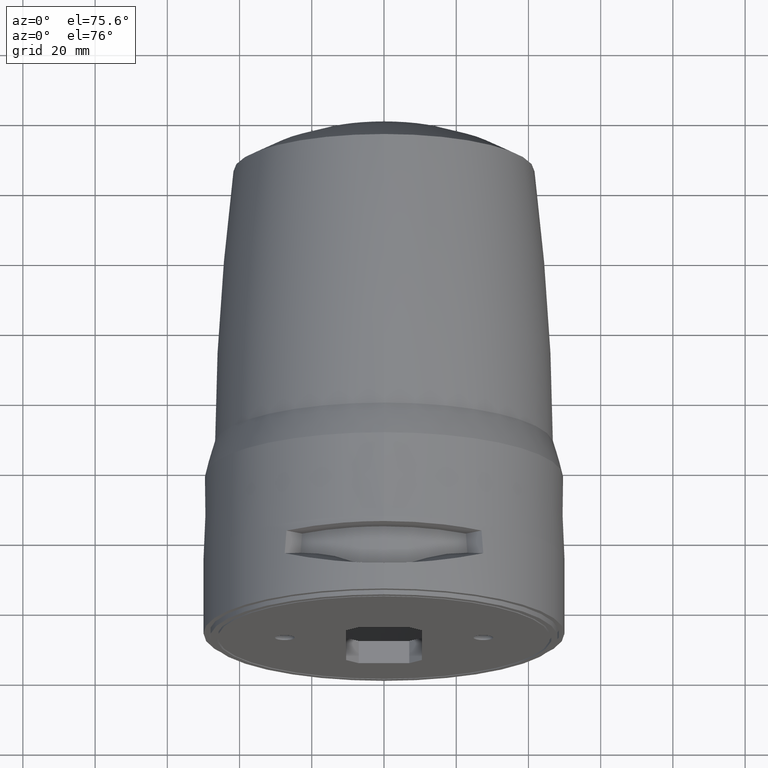
[diagram: clean part render]
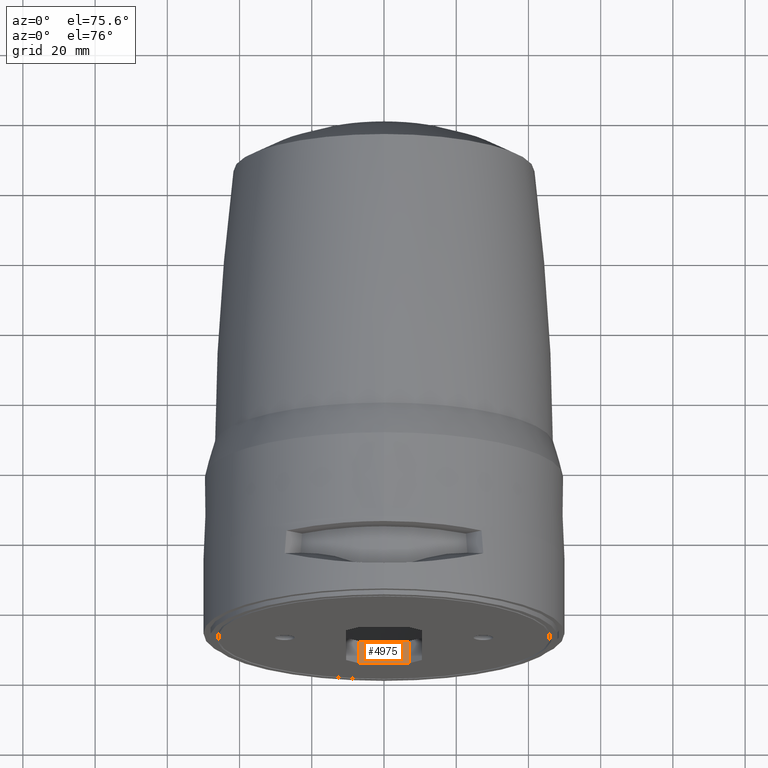
[diagram: same view with one face highlighted and labeled with its STEP entity id]
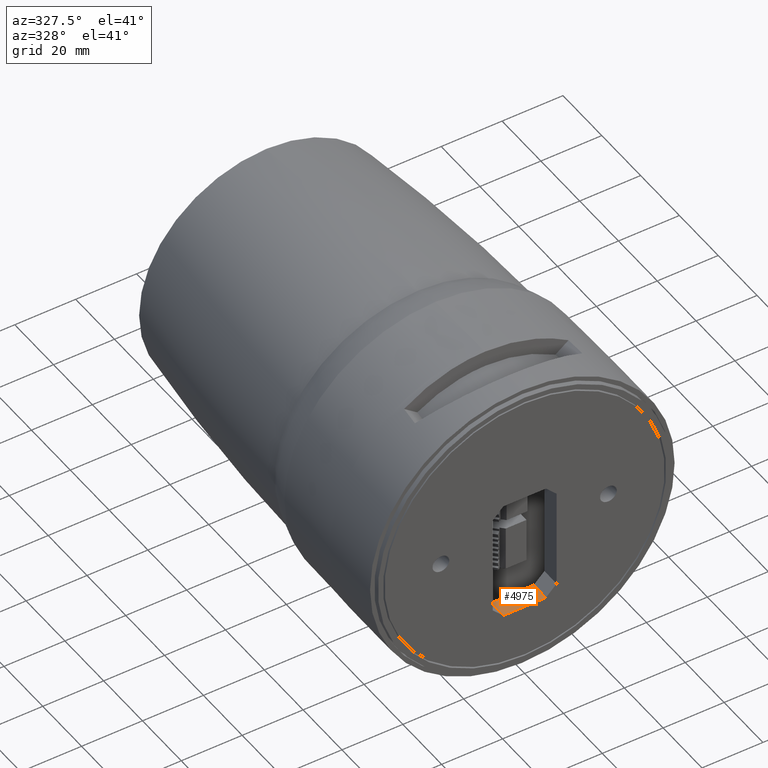
[diagram: same view with one face highlighted and labeled with its STEP entity id]
A machine part, auxiliary view. The second image highlights one B-rep face of the part: STEP entity #4975.
A second angle (auxiliary view) of the same face is appended — the face is thin or edge-on in the first view.
In plain terms, the highlighted planar face has unit normal (0, 0, -1).
Its self-contained STEP definition (entity closure, byte-faithful):
#217 = ORIENTED_EDGE ( 'NONE', *, *, #4767, .F. ) ;
#462 = PLANE ( 'NONE',  #12888 ) ;
#507 = DIRECTION ( 'NONE',  ( -1.000000000000000000, 0.000000000000000000, 0.000000000000000000 ) ) ;
#1108 = DIRECTION ( 'NONE',  ( 0.000000000000000000, 1.000000000000000000, 0.000000000000000000 ) ) ;
#1489 = LINE ( 'NONE', #9903, #3769 ) ;
#3032 = ORIENTED_EDGE ( 'NONE', *, *, #13120, .T. ) ;
#3565 = CARTESIAN_POINT ( 'NONE',  ( -7.000000000000000000, 6.299999999999999822, -28.50000000000000000 ) ) ;
#3680 = LINE ( 'NONE', #9048, #9845 ) ;
#3769 = VECTOR ( 'NONE', #8871, 1000.000000000000000 ) ;
#4767 = EDGE_CURVE ( 'NONE', #10610, #10770, #7625, .T. ) ;
#4975 = ADVANCED_FACE ( 'NONE', ( #10045 ), #462, .F. ) ;
#5488 = DIRECTION ( 'NONE',  ( -1.000000000000000000, 0.000000000000000000, 0.000000000000000000 ) ) ;
#5489 = VERTEX_POINT ( 'NONE', #6910 ) ;
#5630 = DIRECTION ( 'NONE',  ( 0.000000000000000000, 0.000000000000000000, -1.000000000000000000 ) ) ;
#5898 = VECTOR ( 'NONE', #1108, 1000.000000000000000 ) ;
#6260 = CARTESIAN_POINT ( 'NONE',  ( 7.000000000000000000, 0.000000000000000000, -28.50000000000000000 ) ) ;
#6495 = VECTOR ( 'NONE', #5488, 1000.000000000000000 ) ;
#6727 = DIRECTION ( 'NONE',  ( 0.000000000000000000, -1.000000000000000000, 0.000000000000000000 ) ) ;
#6774 = VERTEX_POINT ( 'NONE', #3565 ) ;
#6910 = CARTESIAN_POINT ( 'NONE',  ( 7.000000000000000000, 6.299999999999999822, -28.50000000000000000 ) ) ;
#7443 = CARTESIAN_POINT ( 'NONE',  ( 7.000000000000000000, 6.299999999999999822, -28.50000000000000000 ) ) ;
#7625 = LINE ( 'NONE', #12670, #6495 ) ;
#8064 = EDGE_LOOP ( 'NONE', ( #217, #10359, #3032, #9596 ) ) ;
#8871 = DIRECTION ( 'NONE',  ( 0.000000000000000000, -1.000000000000000000, 0.000000000000000000 ) ) ;
#9048 = CARTESIAN_POINT ( 'NONE',  ( -10.50000000000000000, 6.299999999999999822, -28.50000000000000000 ) ) ;
#9596 = ORIENTED_EDGE ( 'NONE', *, *, #12761, .T. ) ;
#9789 = EDGE_CURVE ( 'NONE', #10610, #5489, #11523, .T. ) ;
#9845 = VECTOR ( 'NONE', #507, 1000.000000000000000 ) ;
#9903 = CARTESIAN_POINT ( 'NONE',  ( -7.000000000000000000, 0.000000000000000000, -28.50000000000000000 ) ) ;
#10045 = FACE_OUTER_BOUND ( 'NONE', #8064, .T. ) ;
#10359 = ORIENTED_EDGE ( 'NONE', *, *, #9789, .T. ) ;
#10610 = VERTEX_POINT ( 'NONE', #6260 ) ;
#10770 = VERTEX_POINT ( 'NONE', #11776 ) ;
#11523 = LINE ( 'NONE', #7443, #5898 ) ;
#11776 = CARTESIAN_POINT ( 'NONE',  ( -7.000000000000000000, 0.000000000000000000, -28.50000000000000000 ) ) ;
#12670 = CARTESIAN_POINT ( 'NONE',  ( -10.50000000000000000, 0.000000000000000000, -28.50000000000000000 ) ) ;
#12761 = EDGE_CURVE ( 'NONE', #6774, #10770, #1489, .T. ) ;
#12888 = AXIS2_PLACEMENT_3D ( 'NONE', #13158, #5630, #6727 ) ;
#13120 = EDGE_CURVE ( 'NONE', #5489, #6774, #3680, .T. ) ;
#13158 = CARTESIAN_POINT ( 'NONE',  ( -10.50000000000000000, 0.000000000000000000, -28.50000000000000000 ) ) ;